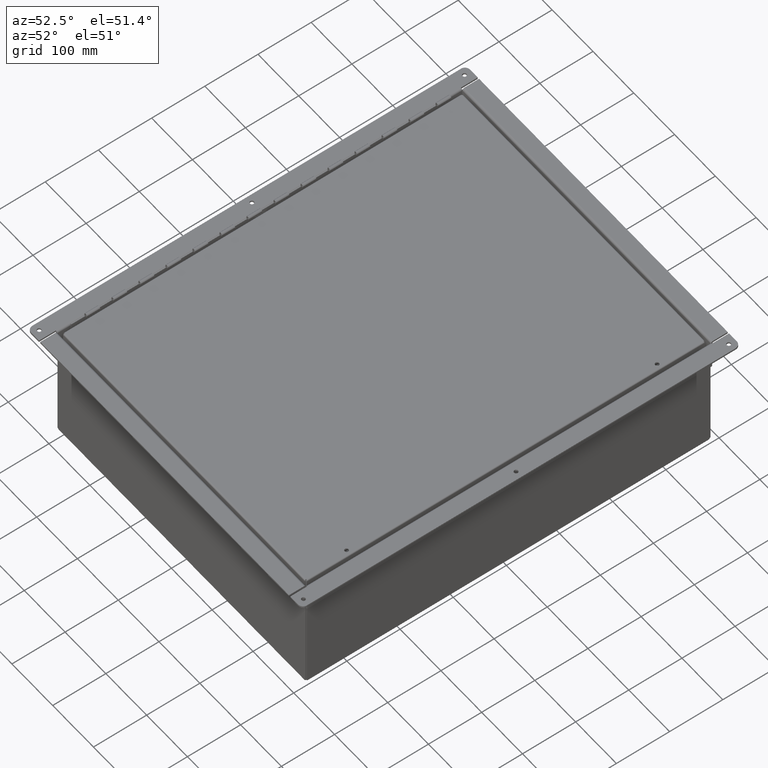
[diagram: clean part render]
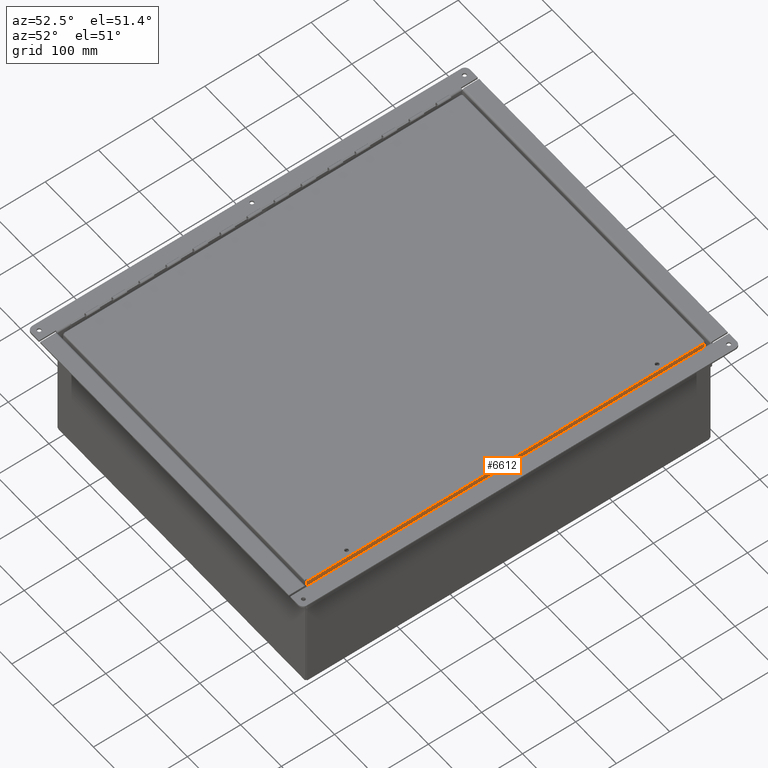
[diagram: same view with one face highlighted and labeled with its STEP entity id]
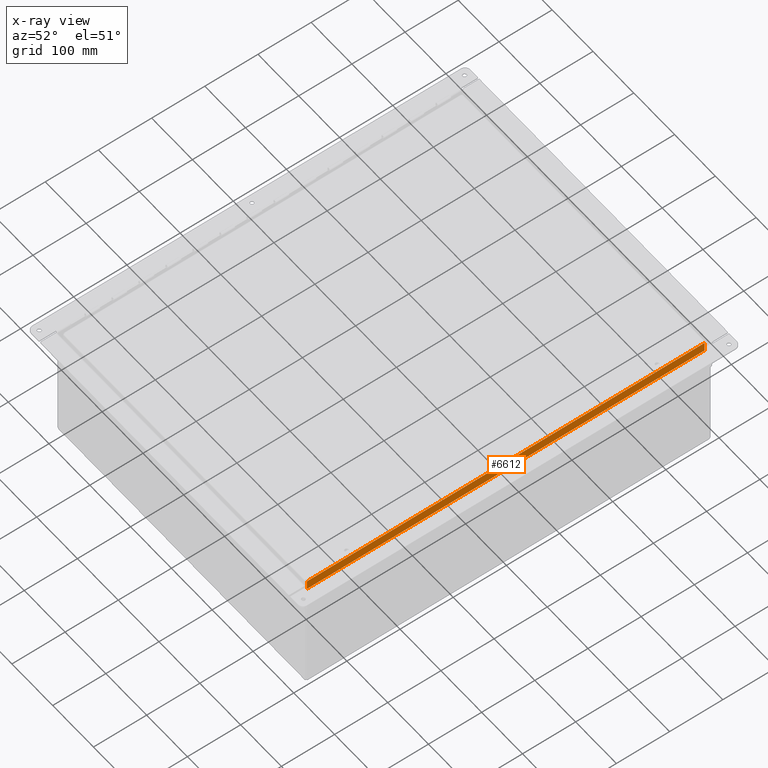
[diagram: x-ray of the same camera — body ghosted, the highlighted face saturated]
A machine part, auxiliary view. The second image highlights one B-rep face of the part: STEP entity #6612.
The next image is the same camera in x-ray: the body ghosted, the highlighted face saturated — about 0% of this face is hidden behind the body in this view.
In plain terms, the highlighted planar face has unit normal (1, 0, 0).
Its self-contained STEP definition (entity closure, byte-faithful):
#517=PLANE($,#7045);
#834=FACE_OUTER_BOUND($,#1225,.T.);
#1225=EDGE_LOOP($,(#4941,#4942,#4943,#4944));
#1785=LINE($,#10993,#2413);
#1791=LINE($,#11021,#2419);
#1796=LINE($,#11083,#2424);
#1798=LINE($,#11086,#2426);
#2413=VECTOR($,#8059,29.4549029130879);
#2419=VECTOR($,#8069,0.70725);
#2424=VECTOR($,#8076,0.70725);
#2426=VECTOR($,#8080,29.4549029130879);
#2985=VERTEX_POINT($,#10991);
#2986=VERTEX_POINT($,#10992);
#2992=VERTEX_POINT($,#11020);
#2994=VERTEX_POINT($,#11082);
#3673=EDGE_CURVE($,#2985,#2986,#1785,.T.);
#3681=EDGE_CURVE($,#2992,#2986,#1791,.T.);
#3688=EDGE_CURVE($,#2985,#2994,#1796,.T.);
#3690=EDGE_CURVE($,#2994,#2992,#1798,.T.);
#4941=ORIENTED_EDGE($,*,*,#3673,.T.);
#4942=ORIENTED_EDGE($,*,*,#3681,.F.);
#4943=ORIENTED_EDGE($,*,*,#3690,.F.);
#4944=ORIENTED_EDGE($,*,*,#3688,.F.);
#6612=ADVANCED_FACE($,(#834),#517,.T.);
#7045=AXIS2_PLACEMENT_3D($,#11087,#8081,#8082);
#8059=DIRECTION($,(3.77249246247348E-016,-1.,-2.4818977603221E-033));
#8069=DIRECTION($,(-5.39030285815812E-015,-2.02145606962884E-030,1.));
#8076=DIRECTION($,(5.39030285815812E-015,2.02145606962884E-030,-1.));
#8080=DIRECTION($,(3.77709683782239E-016,-1.,-9.71539329416871E-017));
#8081=DIRECTION('center_axis',(1.,3.77249246247348E-016,5.39271898039744E-015));
#8082=DIRECTION('ref_axis',(4.51194637207664E-015,-3.77709683782237E-016,
-1.));
#10991=CARTESIAN_POINT('',(11.75,14.727451456544,-0.0312499999999954));
#10992=CARTESIAN_POINT('',(11.75,-14.727451456544,-0.0312499999999982));
#10993=CARTESIAN_POINT($,(11.75,-1.97860805476681E-016,-0.0312499999999995));
#11020=CARTESIAN_POINT('',(11.75,-14.727451456544,-0.738499999999998));
#11021=CARTESIAN_POINT($,(11.75,-14.727451456544,-0.0312499999999982));
#11082=CARTESIAN_POINT('',(11.75,14.727451456544,-0.738499999999995));
#11083=CARTESIAN_POINT($,(11.75,14.727451456544,-0.0312499999999954));
#11086=CARTESIAN_POINT($,(11.75,14.727451456544,-0.738499999999995));
#11087=CARTESIAN_POINT('Origin',(11.75,-4.35448399486509E-016,-0.348761521149996));